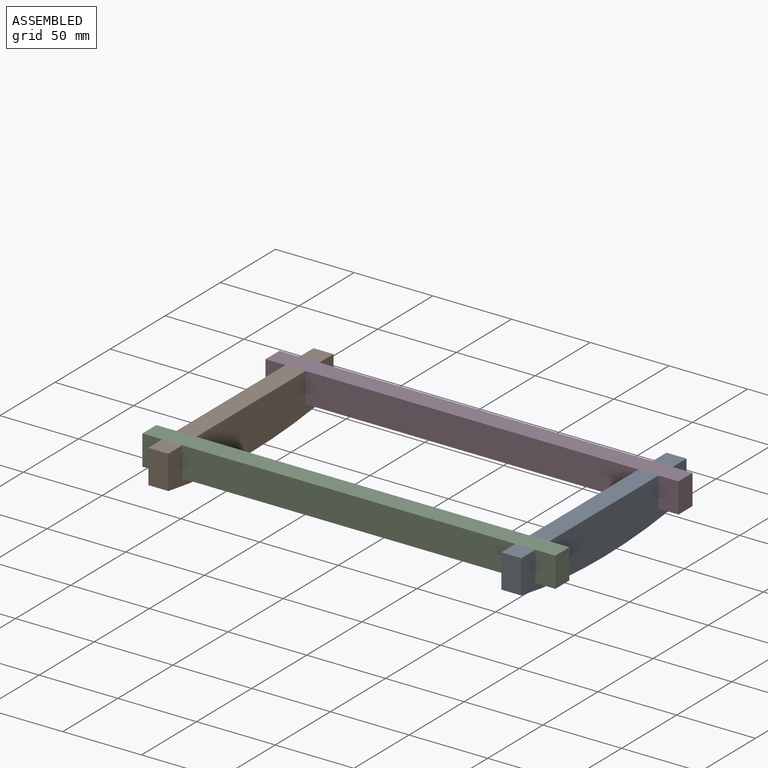
[diagram: assembled view]
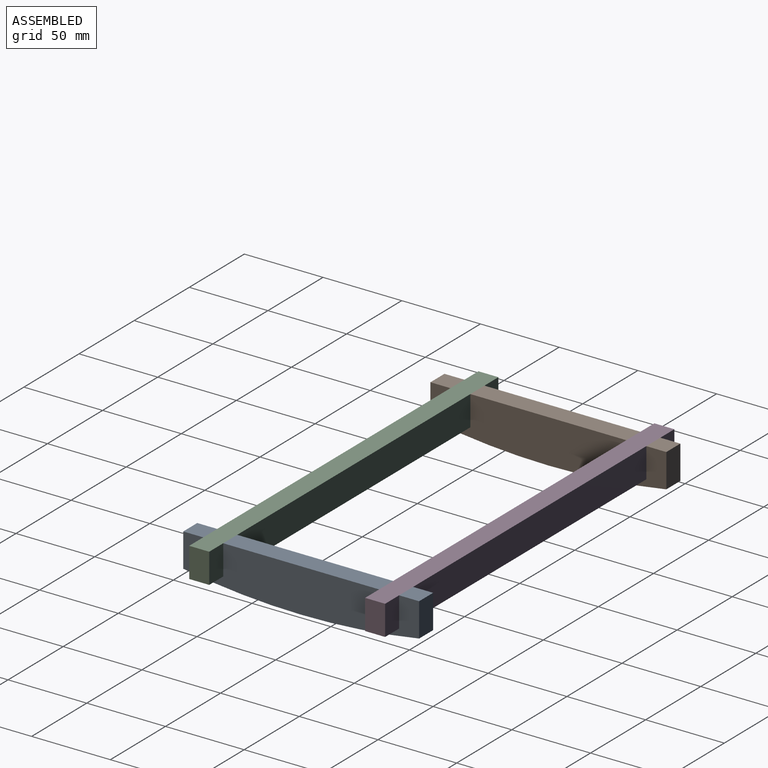
[diagram: assembled view, second angle]
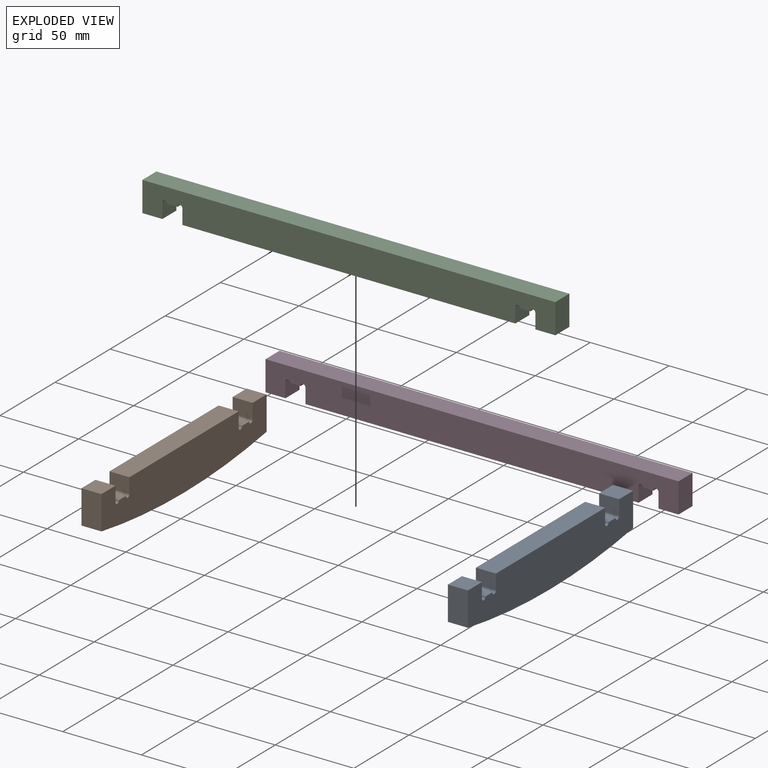
[diagram: exploded view]
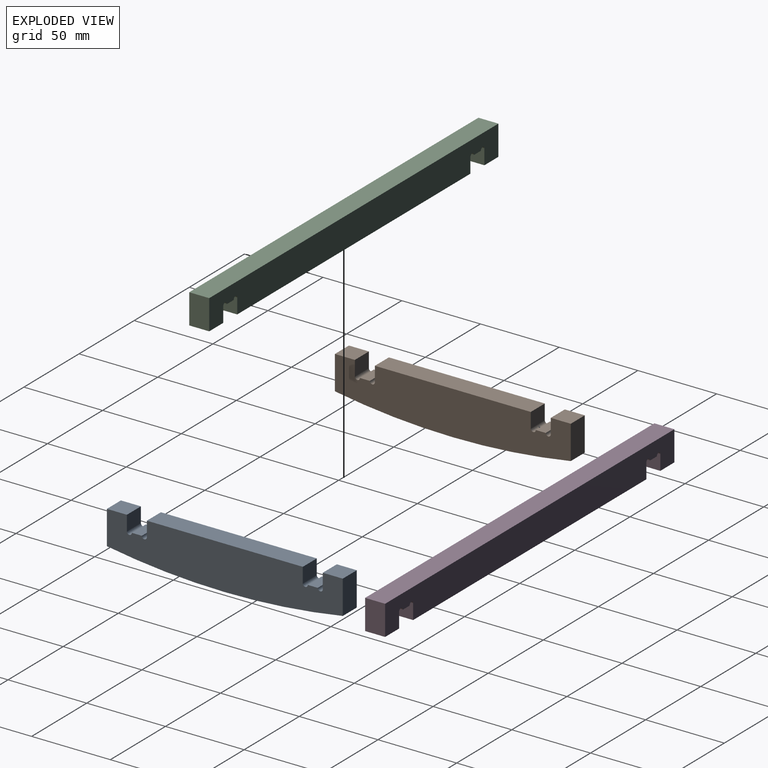
[diagram: exploded view, second angle]
ASSEMBLY  parts=4 mates=3
PART A: 18 faces, bbox 149.9x27.8x12.7 mm
  f0: plane 21.42x12.7mm, normal (1,0,0), area 272.1mm2, adj f1,f15,f16,f17
  f1: cylinder r=445.26mm len=149.86mm, axis (0,0,-1), area 1912.3mm2, adj f0,f2,f16,f17
  f2: plane 21.42x12.7mm, normal (-1,0,0), area 272.1mm2, adj f1,f3,f16,f17
  f3: plane 12.7x12.7mm, normal (0,-1,0), area 161.3mm2, adj f2,f4,f16,f17
  f4: plane 12.7x9.53mm, normal (1,0,0), area 121mm2, adj f3,f5,f16,f17
  f5: cylinder r=1.59mm len=12.7mm, axis (0,0,-1), area 63.3mm2, adj f4,f6,f16,f17
  f6: plane 12.7x6.35mm, normal (0,-1,0), area 80.6mm2, adj f5,f7,f16,f17
  f7: cylinder r=1.59mm len=12.7mm, axis (0,0,-1), area 63.3mm2, adj f6,f8,f16,f17
  f8: plane 12.7x9.53mm, normal (-1,0,0), area 121mm2, adj f7,f9,f16,f17
  f9: plane 99.06x12.7mm, normal (0,-1,0), area 1258.1mm2, adj f8,f10,f16,f17
  f10: plane 12.7x9.53mm, normal (1,0,0), area 121mm2, adj f9,f11,f16,f17
  f11: cylinder r=1.59mm len=12.7mm, axis (0,0,-1), area 63.3mm2, adj f10,f12,f16,f17
  f12: plane 12.7x6.35mm, normal (0,-1,0), area 80.6mm2, adj f11,f13,f16,f17
  f13: cylinder r=1.59mm len=12.7mm, axis (0,0,-1), area 63.3mm2, adj f12,f14,f16,f17
  f14: plane 12.7x9.53mm, normal (-1,0,0), area 121mm2, adj f13,f15,f16,f17
  f15: plane 12.7x12.7mm, normal (0,-1,0), area 161.3mm2, adj f0,f14,f16,f17
  f16: plane 149.86x27.77mm, normal (0,0,1), area 3587.7mm2, adj f0,f1,f2,f3,f4,f5,f6,f7
  f17: plane 149.86x27.77mm, normal (0,0,-1), area 3587.7mm2, adj f0,f1,f2,f3,f4,f5,f6,f7
PART B: same geometry as A
PART C: 18 faces, bbox 262.4x19.1x12.7 mm
  f0: plane 12.7x9.53mm, normal (-1,0,0), area 121mm2, adj f1,f15,f16,f17
  f1: plane 12.7x12.7mm, normal (0,-1,0), area 161.3mm2, adj f0,f2,f16,f17
  f2: plane 19.05x12.7mm, normal (1,0,0), area 241.9mm2, adj f1,f3,f16,f17
  f3: plane 262.38x12.7mm, normal (0,1,0), area 3332.3mm2, adj f2,f4,f16,f17
  f4: plane 19.05x12.7mm, normal (-1,0,0), area 241.9mm2, adj f3,f5,f16,f17
  f5: plane 12.7x12.7mm, normal (0,-1,0), area 161.3mm2, adj f4,f6,f16,f17
  f6: plane 12.7x9.53mm, normal (1,0,0), area 121mm2, adj f5,f7,f16,f17
  f7: cylinder r=1.59mm len=12.7mm, axis (0,0,-1), area 63.3mm2, adj f6,f8,f16,f17
  f8: plane 12.7x6.35mm, normal (0,-1,0), area 80.6mm2, adj f7,f9,f16,f17
  f9: cylinder r=1.59mm len=12.7mm, axis (0,0,-1), area 63.3mm2, adj f8,f10,f16,f17
  f10: plane 12.7x9.53mm, normal (-1,0,0), area 121mm2, adj f9,f11,f16,f17
  f11: plane 211.58x12.7mm, normal (0,-1,0), area 2687.1mm2, adj f10,f12,f16,f17
  f12: plane 12.7x9.53mm, normal (1,0,0), area 121mm2, adj f11,f13,f16,f17
  f13: cylinder r=1.59mm len=12.7mm, axis (0,0,-1), area 63.3mm2, adj f12,f14,f16,f17
  f14: plane 12.7x6.35mm, normal (0,-1,0), area 80.6mm2, adj f13,f15,f16,f17
  f15: cylinder r=1.59mm len=12.7mm, axis (0,0,-1), area 63.3mm2, adj f0,f14,f16,f17
  f16: plane 262.38x19.05mm, normal (0,0,1), area 4740.6mm2, adj f0,f1,f2,f3,f4,f5,f6,f7
  f17: plane 262.38x19.05mm, normal (0,0,-1), area 4740.6mm2, adj f0,f1,f2,f3,f4,f5,f6,f7
PART D: same geometry as C
PLACE A rot(axis=(-0.58,-0.58,0.58),120deg) t=(181.5,178.34,69.53)mm
PLACE B rot(axis=(-0.58,-0.58,0.58),120deg) t=(-42.78,178.34,69.53)mm
PLACE C rot(axis=(1,0,0),90deg) t=(-68.18,203.74,-10.05)mm
PLACE D rot(axis=(1,0,0),90deg) t=(-68.18,315.5,-10.05)mm
MATE fastened A.f6 <-> C.f14  axis (0,0,1) through (175.15,197.39,-0.53)mm
MATE fastened B.f6 <-> C.f8  axis (0,0,1) through (-49.13,197.39,-0.53)mm
MATE fastened D.f8 <-> B.f12  axis (0,0,-1) through (-49.13,309.15,-0.53)mm
